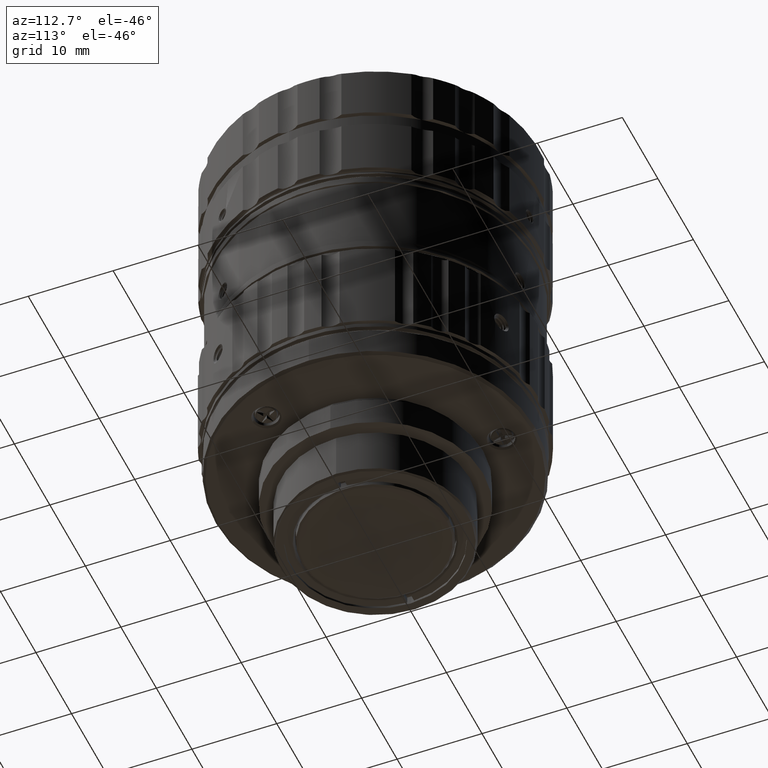
[diagram: clean part render]
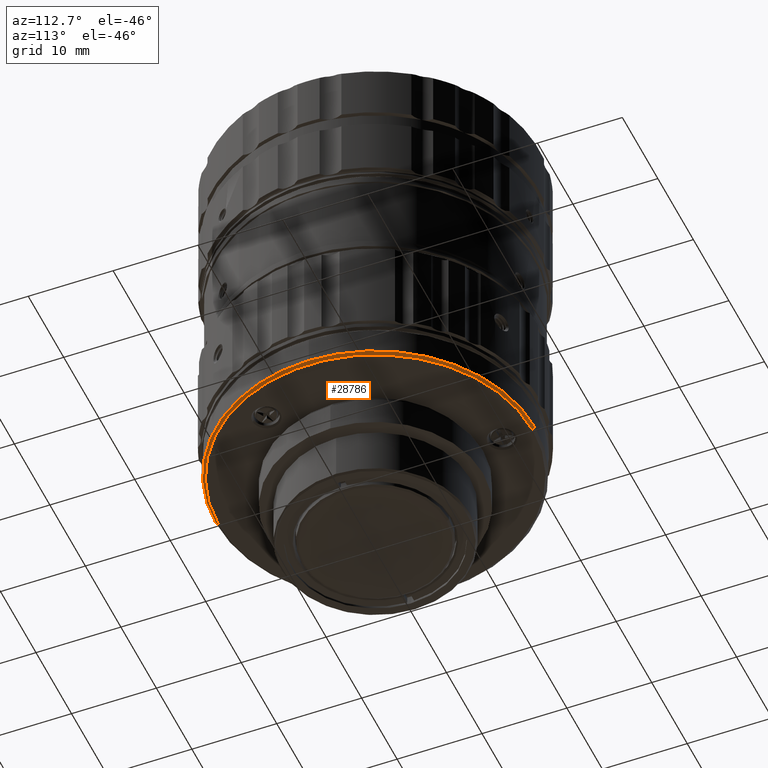
[diagram: same view with one face highlighted and labeled with its STEP entity id]
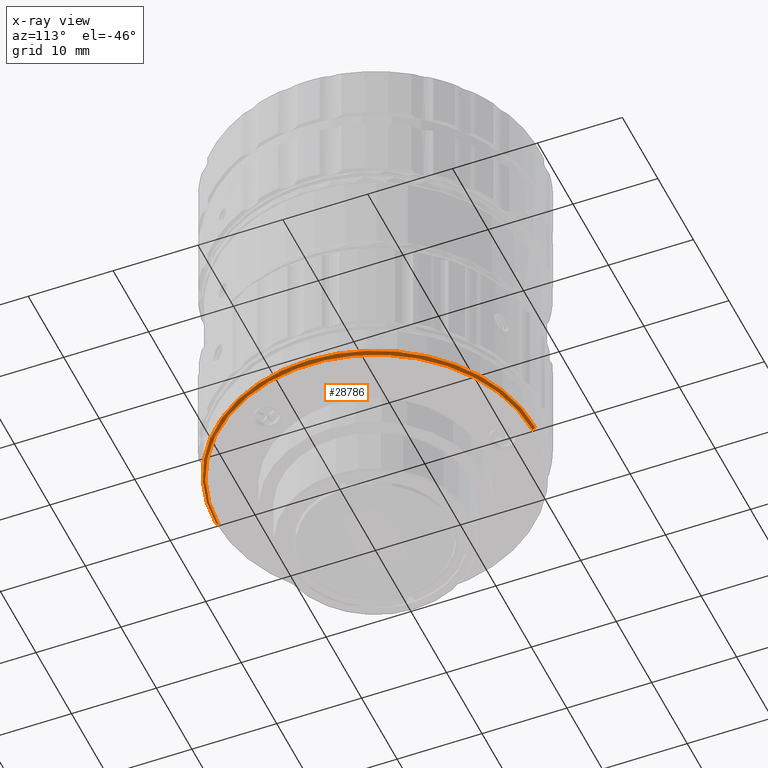
[diagram: x-ray of the same camera — body ghosted, the highlighted face saturated]
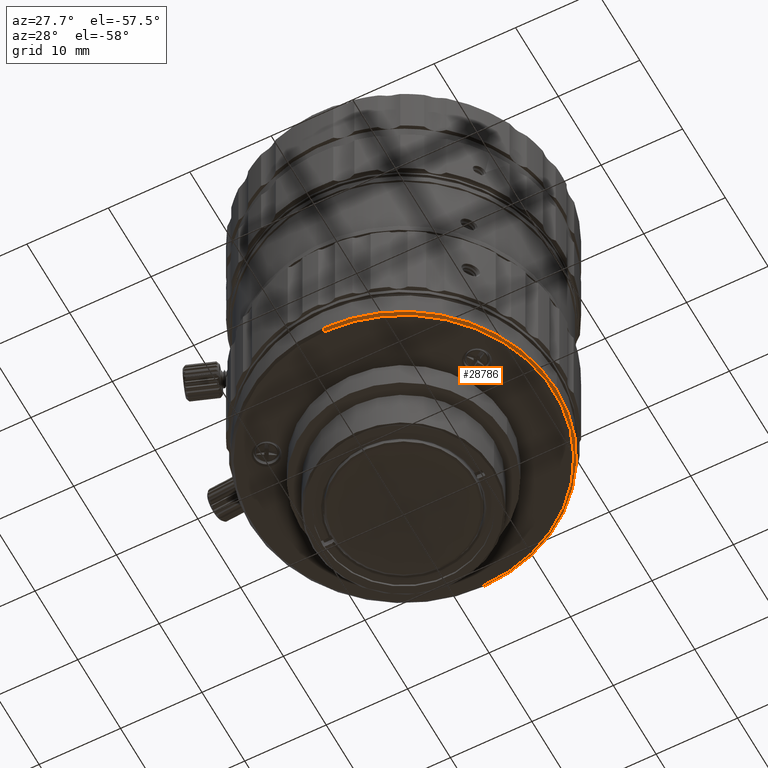
[diagram: same view with one face highlighted and labeled with its STEP entity id]
A machine part, auxiliary view. The second image highlights one B-rep face of the part: STEP entity #28786.
The next image is the same camera in x-ray: the body ghosted, the highlighted face saturated — about 0% of this face is hidden behind the body in this view.
A second angle (auxiliary view) of the same face is appended — the face is thin or edge-on in the first view.
In plain terms, the highlighted conical surface has half-angle 45 deg.
Its self-contained STEP definition (entity closure, byte-faithful):
#275 = FACE_OUTER_BOUND ( 'NONE', #9313, .T. ) ;
#597 = DIRECTION ( 'NONE',  ( 8.659560554583427742E-17, 0.7071067805519559712, 0.7071067818211389522 ) ) ;
#2970 = VERTEX_POINT ( 'NONE', #8512 ) ;
#3604 = EDGE_CURVE ( 'NONE', #28267, #16776, #12471, .T. ) ;
#5185 = ORIENTED_EDGE ( 'NONE', *, *, #46450, .F. ) ;
#5577 = DIRECTION ( 'NONE',  ( 1.000000000000000000, -4.682730835717000173E-11, 0.000000000000000000 ) ) ;
#7151 = EDGE_CURVE ( 'NONE', #42284, #16776, #44600, .T. ) ;
#8512 = CARTESIAN_POINT ( 'NONE',  ( 0.000000000000000000, -18.50000000000000000, -1.749999999998710143 ) ) ;
#9313 = EDGE_LOOP ( 'NONE', ( #37291, #34370, #10548, #5185, #46281 ) ) ;
#9608 = CIRCLE ( 'NONE', #18517, 18.50000000000000000 ) ;
#10548 = ORIENTED_EDGE ( 'NONE', *, *, #7151, .F. ) ;
#11175 = EDGE_CURVE ( 'NONE', #2970, #28267, #9608, .T. ) ;
#12471 = LINE ( 'NONE', #59936, #67224 ) ;
#14552 = AXIS2_PLACEMENT_3D ( 'NONE', #15168, #53508, #25595 ) ;
#15168 = CARTESIAN_POINT ( 'NONE',  ( 0.000000000000000000, 0.000000000000000000, -1.449999999998699884 ) ) ;
#16694 = DIRECTION ( 'NONE',  ( 0.000000000000000000, -1.319796489355540074E-17, 1.000000000000000000 ) ) ;
#16776 = VERTEX_POINT ( 'NONE', #52190 ) ;
#16992 = EDGE_CURVE ( 'NONE', #2970, #47571, #48673, .T. ) ;
#18517 = AXIS2_PLACEMENT_3D ( 'NONE', #48307, #54277, #37831 ) ;
#20644 = CONICAL_SURFACE ( 'NONE', #26204, 18.64999999999999858, 0.7853981625000003852 ) ;
#22260 = DIRECTION ( 'NONE',  ( 0.000000000000000000, -1.000000000000000000, -1.162683294890621535E-17 ) ) ;
#23179 = CARTESIAN_POINT ( 'NONE',  ( 0.000000000000000000, -18.64999999999999858, -1.599999999998700240 ) ) ;
#25513 = CARTESIAN_POINT ( 'NONE',  ( 2.283966280393194105E-15, 18.50000000000000000, -1.749999999998710143 ) ) ;
#25595 = DIRECTION ( 'NONE',  ( 1.000000000000000000, -4.682730835717000173E-11, 0.000000000000000000 ) ) ;
#26204 = AXIS2_PLACEMENT_3D ( 'NONE', #64511, #16694, #22260 ) ;
#27539 = CARTESIAN_POINT ( 'NONE',  ( 0.000000000000000000, 0.000000000000000000, -1.449999999998699884 ) ) ;
#28267 = VERTEX_POINT ( 'NONE', #25513 ) ;
#28786 = ADVANCED_FACE ( 'NONE', ( #275 ), #20644, .T. ) ;
#31741 = DIRECTION ( 'NONE',  ( 0.000000000000000000, 0.000000000000000000, 1.000000000000000000 ) ) ;
#33982 = DIRECTION ( 'NONE',  ( 0.000000000000000000, -0.7071067805519559712, 0.7071067818211389522 ) ) ;
#34370 = ORIENTED_EDGE ( 'NONE', *, *, #3604, .T. ) ;
#37291 = ORIENTED_EDGE ( 'NONE', *, *, #11175, .T. ) ;
#37831 = DIRECTION ( 'NONE',  ( -1.000000000000000000, -9.955786259502999224E-12, 0.000000000000000000 ) ) ;
#42284 = VERTEX_POINT ( 'NONE', #65617 ) ;
#44600 = CIRCLE ( 'NONE', #14552, 18.80000000000000071 ) ;
#44647 = CARTESIAN_POINT ( 'NONE',  ( 0.000000000000000000, -18.79999999973076541, -1.449999999998699884 ) ) ;
#45676 = VECTOR ( 'NONE', #33982, 1000.000000000000114 ) ;
#46281 = ORIENTED_EDGE ( 'NONE', *, *, #16992, .F. ) ;
#46450 = EDGE_CURVE ( 'NONE', #47571, #42284, #59819, .T. ) ;
#47571 = VERTEX_POINT ( 'NONE', #44647 ) ;
#48307 = CARTESIAN_POINT ( 'NONE',  ( 0.000000000000000000, 0.000000000000000000, -1.749999999998710143 ) ) ;
#48673 = LINE ( 'NONE', #23179, #45676 ) ;
#52190 = CARTESIAN_POINT ( 'NONE',  ( 2.302335982364052631E-15, 18.79999999973076541, -1.449999999998699884 ) ) ;
#53508 = DIRECTION ( 'NONE',  ( 0.000000000000000000, 0.000000000000000000, 1.000000000000000000 ) ) ;
#54277 = DIRECTION ( 'NONE',  ( 0.000000000000000000, 0.000000000000000000, 1.000000000000000000 ) ) ;
#59819 = CIRCLE ( 'NONE', #68741, 18.80000000000000071 ) ;
#59936 = CARTESIAN_POINT ( 'NONE',  ( 2.283966280409813826E-15, 18.64999999999999858, -1.599999999998699796 ) ) ;
#64511 = CARTESIAN_POINT ( 'NONE',  ( 0.000000000000000000, 0.000000000000000000, -1.599999999998700018 ) ) ;
#65617 = CARTESIAN_POINT ( 'NONE',  ( 18.80000000000000071, -8.803533971147961049E-10, -1.449999999998699884 ) ) ;
#67224 = VECTOR ( 'NONE', #597, 1000.000000000000114 ) ;
#68741 = AXIS2_PLACEMENT_3D ( 'NONE', #27539, #31741, #5577 ) ;